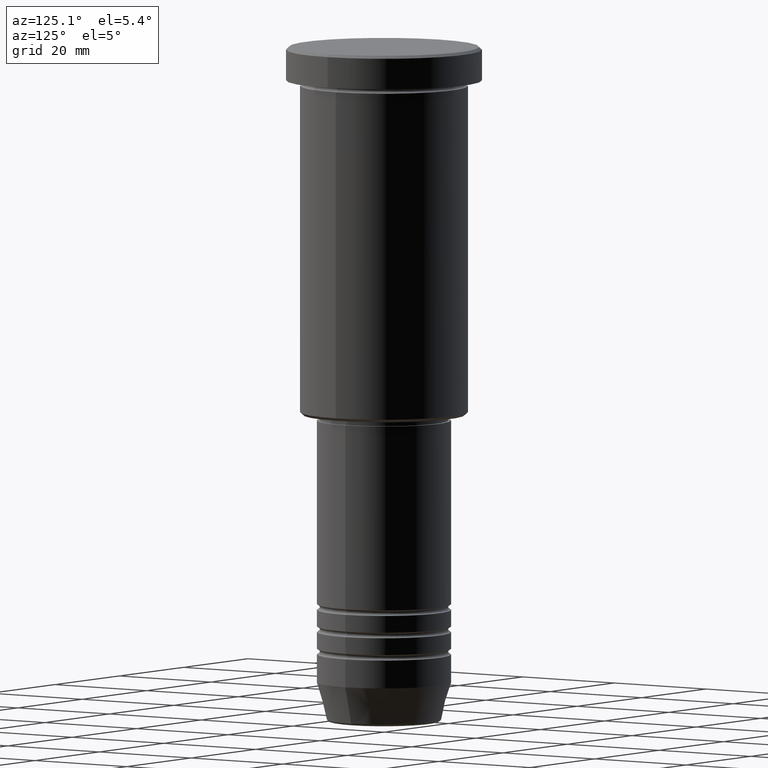
[diagram: clean part render]
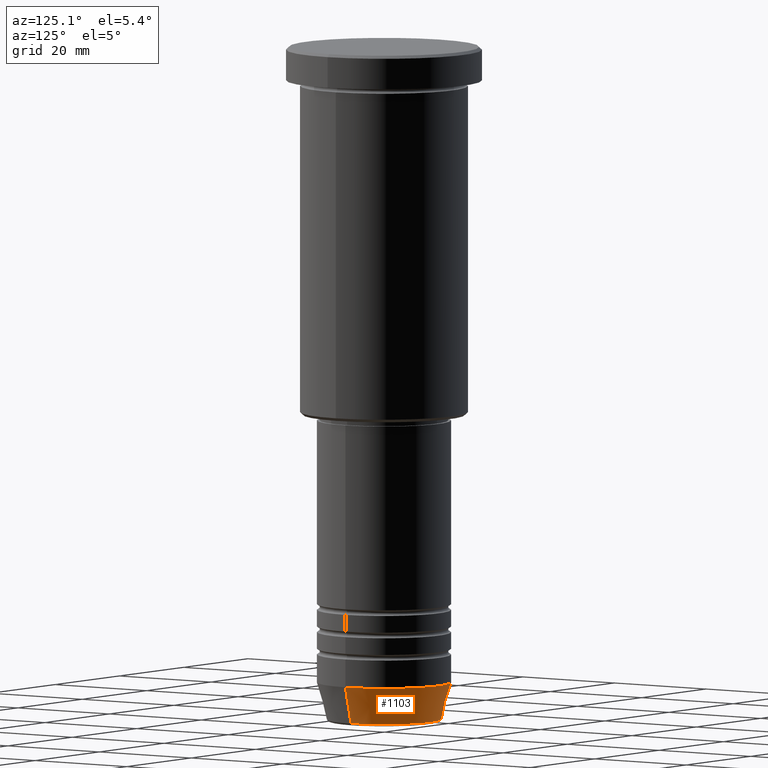
[diagram: same view with one face highlighted and labeled with its STEP entity id]
A machine part, auxiliary view. The second image highlights one B-rep face of the part: STEP entity #1103.
In plain terms, the highlighted conical surface has half-angle 15 deg.
Its self-contained STEP definition (entity closure, byte-faithful):
#69 = ORIENTED_EDGE ( 'NONE', *, *, #381, .F. ) ;
#87 = ORIENTED_EDGE ( 'NONE', *, *, #562, .F. ) ;
#91 = CONICAL_SURFACE ( 'NONE', #315, 12.00000000000000000, 0.2617993877991500740 ) ;
#153 = FACE_OUTER_BOUND ( 'NONE', #981, .T. ) ;
#160 = CARTESIAN_POINT ( 'NONE',  ( 0.000000000000000000, 0.000000000000000000, -114.0000000000000000 ) ) ;
#225 = AXIS2_PLACEMENT_3D ( 'NONE', #160, #328, #610 ) ;
#259 = VECTOR ( 'NONE', #799, 1000.000000000000000 ) ;
#282 = VECTOR ( 'NONE', #938, 1000.000000000000000 ) ;
#292 = DIRECTION ( 'NONE',  ( 1.000000000000000000, 0.000000000000000000, 0.000000000000000000 ) ) ;
#315 = AXIS2_PLACEMENT_3D ( 'NONE', #704, #459, #627 ) ;
#328 = DIRECTION ( 'NONE',  ( -0.000000000000000000, -0.000000000000000000, 1.000000000000000000 ) ) ;
#348 = VERTEX_POINT ( 'NONE', #1007 ) ;
#381 = EDGE_CURVE ( 'NONE', #1011, #348, #999, .T. ) ;
#391 = VERTEX_POINT ( 'NONE', #1084 ) ;
#459 = DIRECTION ( 'NONE',  ( -0.000000000000000000, -0.000000000000000000, 1.000000000000000000 ) ) ;
#497 = DIRECTION ( 'NONE',  ( -0.000000000000000000, -0.000000000000000000, 1.000000000000000000 ) ) ;
#562 = EDGE_CURVE ( 'NONE', #348, #391, #758, .T. ) ;
#579 = LINE ( 'NONE', #934, #282 ) ;
#610 = DIRECTION ( 'NONE',  ( 1.000000000000000000, 0.000000000000000000, 0.000000000000000000 ) ) ;
#627 = DIRECTION ( 'NONE',  ( 1.000000000000000000, 0.000000000000000000, 0.000000000000000000 ) ) ;
#662 = ORIENTED_EDGE ( 'NONE', *, *, #803, .T. ) ;
#663 = CIRCLE ( 'NONE', #817, 10.22365507213718949 ) ;
#674 = CARTESIAN_POINT ( 'NONE',  ( -10.22365507213718949, 1.360806402472382744E-15, -120.6294095225512564 ) ) ;
#704 = CARTESIAN_POINT ( 'NONE',  ( 0.000000000000000000, 0.000000000000000000, -114.0000000000000000 ) ) ;
#718 = CARTESIAN_POINT ( 'NONE',  ( 12.00000000000000000, 0.000000000000000000, -114.0000000000000000 ) ) ;
#758 = CIRCLE ( 'NONE', #225, 12.00000000000000000 ) ;
#799 = DIRECTION ( 'NONE',  ( 0.2588190451025213501, 0.000000000000000000, 0.9659258262890680902 ) ) ;
#803 = EDGE_CURVE ( 'NONE', #1011, #1061, #663, .T. ) ;
#817 = AXIS2_PLACEMENT_3D ( 'NONE', #834, #497, #292 ) ;
#834 = CARTESIAN_POINT ( 'NONE',  ( 0.000000000000000000, 0.000000000000000000, -120.6294095225512564 ) ) ;
#922 = EDGE_CURVE ( 'NONE', #1061, #391, #579, .T. ) ;
#934 = CARTESIAN_POINT ( 'NONE',  ( -12.00000000000000000, 1.469576158976823947E-15, -114.0000000000000000 ) ) ;
#938 = DIRECTION ( 'NONE',  ( -0.2588190451025213501, 3.169619151431772337E-17, 0.9659258262890680902 ) ) ;
#951 = CARTESIAN_POINT ( 'NONE',  ( 10.22365507213718949, 0.000000000000000000, -120.6294095225512564 ) ) ;
#954 = ORIENTED_EDGE ( 'NONE', *, *, #922, .T. ) ;
#981 = EDGE_LOOP ( 'NONE', ( #662, #954, #87, #69 ) ) ;
#999 = LINE ( 'NONE', #718, #259 ) ;
#1007 = CARTESIAN_POINT ( 'NONE',  ( 12.00000000000000000, 0.000000000000000000, -114.0000000000000000 ) ) ;
#1011 = VERTEX_POINT ( 'NONE', #951 ) ;
#1061 = VERTEX_POINT ( 'NONE', #674 ) ;
#1084 = CARTESIAN_POINT ( 'NONE',  ( -12.00000000000000000, 1.469576158976823947E-15, -114.0000000000000000 ) ) ;
#1103 = ADVANCED_FACE ( 'NONE', ( #153 ), #91, .T. ) ;